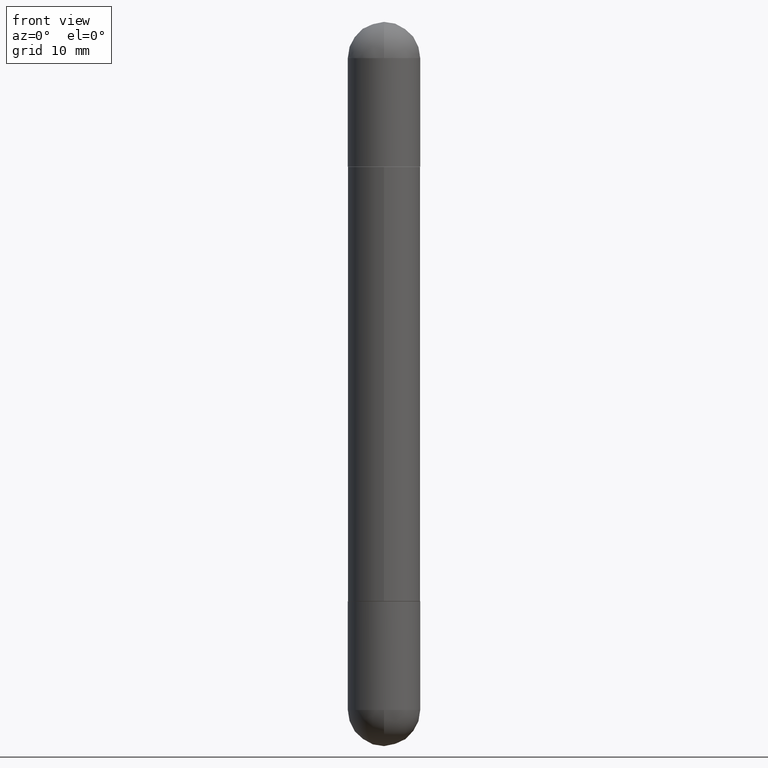
[diagram: clean part render]
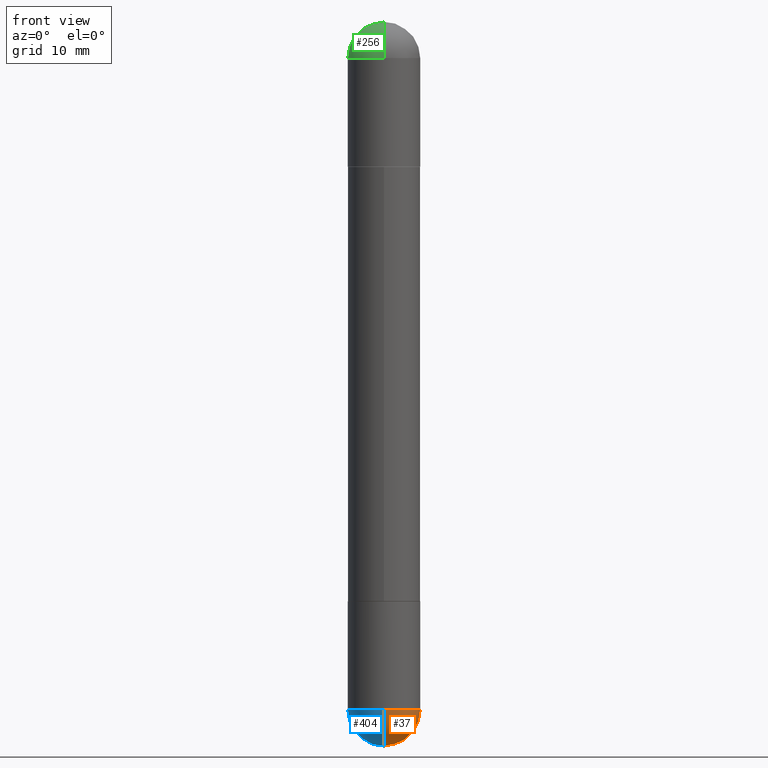
[diagram: same view with three faces highlighted in distinct colors, each labeled with its STEP entity id]
A machine part, front view with three faces highlighted in distinct colors.
Their STEP definitions:

[orange] entity #37 — the highlighted spherical surface has radius 3.175 mm.
#11 = AXIS2_PLACEMENT_3D ( 'NONE', #44, #104, #485 ) ;
#25 = DIRECTION ( 'NONE',  ( -2.445468806185136597E-29, 3.491481338843145583E-15, 1.000000000000000000 ) ) ;
#37 = ADVANCED_FACE ( 'NONE', ( #407 ), #547, .T. ) ;
#44 = CARTESIAN_POINT ( 'NONE',  ( 5.476868636775814291E-29, -8.766450547892521992E-15, -2.375000000000000000 ) ) ;
#47 = AXIS2_PLACEMENT_3D ( 'NONE', #739, #550, #429 ) ;
#59 = AXIS2_PLACEMENT_3D ( 'NONE', #94, #348, #610 ) ;
#94 = CARTESIAN_POINT ( 'NONE',  ( 5.476868636775814291E-29, -8.766450547892521992E-15, -2.375000000000000000 ) ) ;
#104 = DIRECTION ( 'NONE',  ( 1.000000000000000000, -6.982962677686265922E-15, 4.883557194083112340E-29 ) ) ;
#105 = AXIS2_PLACEMENT_3D ( 'NONE', #474, #726, #789 ) ;
#128 = ORIENTED_EDGE ( 'NONE', *, *, #761, .F. ) ;
#143 = CARTESIAN_POINT ( 'NONE',  ( 5.807988414689700538E-29, -8.292268179752471696E-15, -2.375000000000000000 ) ) ;
#184 = EDGE_CURVE ( 'NONE', #233, #754, #371, .T. ) ;
#204 = VERTEX_POINT ( 'NONE', #731 ) ;
#221 = CARTESIAN_POINT ( 'NONE',  ( 0.1250000000000000000, -8.510485763430165164E-15, -2.375000000000000000 ) ) ;
#233 = VERTEX_POINT ( 'NONE', #743 ) ;
#332 = DIRECTION ( 'NONE',  ( 1.000000000000000000, -6.982962677686270655E-15, 0.000000000000000000 ) ) ;
#348 = DIRECTION ( 'NONE',  ( -1.000000000000000000, 7.105427357601001070E-15, -4.926315508542082329E-29 ) ) ;
#371 = CIRCLE ( 'NONE', #11, 0.1250000000000001943 ) ;
#382 = ORIENTED_EDGE ( 'NONE', *, *, #184, .T. ) ;
#407 = FACE_OUTER_BOUND ( 'NONE', #506, .T. ) ;
#425 = CARTESIAN_POINT ( 'NONE',  ( 8.728703347108403340E-16, 0.1249999999999915623, -2.375000000000000888 ) ) ;
#429 = DIRECTION ( 'NONE',  ( 1.000000000000000000, -6.982962677686270655E-15, 0.000000000000000000 ) ) ;
#450 = CIRCLE ( 'NONE', #59, 0.1250000000000001943 ) ;
#474 = CARTESIAN_POINT ( 'NONE',  ( 5.476868636775814291E-29, -8.766450547892521992E-15, -2.375000000000000000 ) ) ;
#485 = DIRECTION ( 'NONE',  ( 6.982962677686265133E-15, 1.000000000000000000, 0.000000000000000000 ) ) ;
#499 = CIRCLE ( 'NONE', #47, 0.1250000000000000000 ) ;
#506 = EDGE_LOOP ( 'NONE', ( #808, #382, #721, #128 ) ) ;
#547 = SPHERICAL_SURFACE ( 'NONE', #105, 0.1250000000000001943 ) ;
#550 = DIRECTION ( 'NONE',  ( -2.445468806185136597E-29, 3.491481338843145583E-15, 1.000000000000000000 ) ) ;
#609 = CIRCLE ( 'NONE', #703, 0.1250000000000000000 ) ;
#610 = DIRECTION ( 'NONE',  ( -7.105427357601000281E-15, -1.000000000000000000, 0.000000000000000000 ) ) ;
#630 = EDGE_CURVE ( 'NONE', #712, #754, #609, .T. ) ;
#703 = AXIS2_PLACEMENT_3D ( 'NONE', #143, #25, #332 ) ;
#712 = VERTEX_POINT ( 'NONE', #221 ) ;
#721 = ORIENTED_EDGE ( 'NONE', *, *, #630, .F. ) ;
#726 = DIRECTION ( 'NONE',  ( -1.000000000000000000, 6.982962677686265922E-15, -4.883557194083112901E-29 ) ) ;
#731 = CARTESIAN_POINT ( 'NONE',  ( -8.881784197000694204E-16, -0.1250000000000086320, -2.374999999999999556 ) ) ;
#739 = CARTESIAN_POINT ( 'NONE',  ( 5.807988414689700538E-29, -8.292268179752471696E-15, -2.375000000000000000 ) ) ;
#743 = CARTESIAN_POINT ( 'NONE',  ( 5.787897026856327965E-29, -9.195231672753244292E-15, -2.500000000000000444 ) ) ;
#754 = VERTEX_POINT ( 'NONE', #425 ) ;
#761 = EDGE_CURVE ( 'NONE', #204, #712, #499, .T. ) ;
#789 = DIRECTION ( 'NONE',  ( 6.982962677686265922E-15, 1.000000000000000000, -4.370956789862814839E-15 ) ) ;
#808 = ORIENTED_EDGE ( 'NONE', *, *, #813, .F. ) ;
#813 = EDGE_CURVE ( 'NONE', #233, #204, #450, .T. ) ;

[blue] entity #404 — the highlighted spherical surface has radius 3.175 mm.
#11 = AXIS2_PLACEMENT_3D ( 'NONE', #44, #104, #485 ) ;
#44 = CARTESIAN_POINT ( 'NONE',  ( 5.476868636775814291E-29, -8.766450547892521992E-15, -2.375000000000000000 ) ) ;
#50 = CARTESIAN_POINT ( 'NONE',  ( -0.1250000000000000000, -6.749437009019256592E-15, -2.375000000000000000 ) ) ;
#59 = AXIS2_PLACEMENT_3D ( 'NONE', #94, #348, #610 ) ;
#66 = CIRCLE ( 'NONE', #428, 0.1250000000000000000 ) ;
#94 = CARTESIAN_POINT ( 'NONE',  ( 5.476868636775814291E-29, -8.766450547892521992E-15, -2.375000000000000000 ) ) ;
#104 = DIRECTION ( 'NONE',  ( 1.000000000000000000, -6.982962677686265922E-15, 4.883557194083112340E-29 ) ) ;
#144 = CARTESIAN_POINT ( 'NONE',  ( 5.476868636775814291E-29, -8.766450547892521992E-15, -2.375000000000000000 ) ) ;
#184 = EDGE_CURVE ( 'NONE', #233, #754, #371, .T. ) ;
#204 = VERTEX_POINT ( 'NONE', #731 ) ;
#210 = DIRECTION ( 'NONE',  ( 1.000000000000000000, -6.982962677686270655E-15, 0.000000000000000000 ) ) ;
#233 = VERTEX_POINT ( 'NONE', #743 ) ;
#335 = DIRECTION ( 'NONE',  ( -2.445468806185136597E-29, 3.491481338843145583E-15, 1.000000000000000000 ) ) ;
#348 = DIRECTION ( 'NONE',  ( -1.000000000000000000, 7.105427357601001070E-15, -4.926315508542082329E-29 ) ) ;
#371 = CIRCLE ( 'NONE', #11, 0.1250000000000001943 ) ;
#391 = DIRECTION ( 'NONE',  ( 6.982962677686265922E-15, 1.000000000000000000, -4.370956789862814839E-15 ) ) ;
#404 = ADVANCED_FACE ( 'NONE', ( #594 ), #707, .T. ) ;
#405 = CARTESIAN_POINT ( 'NONE',  ( 5.807988414689700538E-29, -8.292268179752471696E-15, -2.375000000000000000 ) ) ;
#425 = CARTESIAN_POINT ( 'NONE',  ( 8.728703347108403340E-16, 0.1249999999999915623, -2.375000000000000888 ) ) ;
#428 = AXIS2_PLACEMENT_3D ( 'NONE', #467, #719, #452 ) ;
#450 = CIRCLE ( 'NONE', #59, 0.1250000000000001943 ) ;
#452 = DIRECTION ( 'NONE',  ( 1.000000000000000000, -6.982962677686270655E-15, 0.000000000000000000 ) ) ;
#467 = CARTESIAN_POINT ( 'NONE',  ( 5.807988414689700538E-29, -8.292268179752471696E-15, -2.375000000000000000 ) ) ;
#469 = ORIENTED_EDGE ( 'NONE', *, *, #578, .F. ) ;
#485 = DIRECTION ( 'NONE',  ( 6.982962677686265133E-15, 1.000000000000000000, 0.000000000000000000 ) ) ;
#526 = ORIENTED_EDGE ( 'NONE', *, *, #541, .F. ) ;
#534 = DIRECTION ( 'NONE',  ( -1.000000000000000000, 6.982962677686265922E-15, -4.883557194083112901E-29 ) ) ;
#541 = EDGE_CURVE ( 'NONE', #754, #697, #763, .T. ) ;
#556 = ORIENTED_EDGE ( 'NONE', *, *, #184, .F. ) ;
#578 = EDGE_CURVE ( 'NONE', #697, #204, #66, .T. ) ;
#594 = FACE_OUTER_BOUND ( 'NONE', #717, .T. ) ;
#610 = DIRECTION ( 'NONE',  ( -7.105427357601000281E-15, -1.000000000000000000, 0.000000000000000000 ) ) ;
#643 = AXIS2_PLACEMENT_3D ( 'NONE', #144, #534, #391 ) ;
#697 = VERTEX_POINT ( 'NONE', #50 ) ;
#701 = AXIS2_PLACEMENT_3D ( 'NONE', #405, #335, #210 ) ;
#707 = SPHERICAL_SURFACE ( 'NONE', #643, 0.1250000000000001943 ) ;
#717 = EDGE_LOOP ( 'NONE', ( #556, #750, #469, #526 ) ) ;
#719 = DIRECTION ( 'NONE',  ( -2.445468806185136597E-29, 3.491481338843145583E-15, 1.000000000000000000 ) ) ;
#731 = CARTESIAN_POINT ( 'NONE',  ( -8.881784197000694204E-16, -0.1250000000000086320, -2.374999999999999556 ) ) ;
#743 = CARTESIAN_POINT ( 'NONE',  ( 5.787897026856327965E-29, -9.195231672753244292E-15, -2.500000000000000444 ) ) ;
#750 = ORIENTED_EDGE ( 'NONE', *, *, #813, .T. ) ;
#754 = VERTEX_POINT ( 'NONE', #425 ) ;
#763 = CIRCLE ( 'NONE', #701, 0.1250000000000000000 ) ;
#813 = EDGE_CURVE ( 'NONE', #233, #204, #450, .T. ) ;

[green] entity #256 — the highlighted spherical surface has radius 3.175 mm.
#22 = CARTESIAN_POINT ( 'NONE',  ( 5.476868636775814291E-29, -8.766450547892521992E-15, -0.1250000000000004441 ) ) ;
#32 = CARTESIAN_POINT ( 'NONE',  ( 5.787897026856327965E-29, -9.195231672753244292E-15, -2.561107494060246644E-16 ) ) ;
#45 = DIRECTION ( 'NONE',  ( -1.000000000000000000, 6.982962677686265922E-15, 4.883557194083112340E-29 ) ) ;
#48 = DIRECTION ( 'NONE',  ( 1.000000000000000000, -6.860497997771530774E-15, -4.840798879624142912E-29 ) ) ;
#78 = CIRCLE ( 'NONE', #493, 0.1250000000000000000 ) ;
#98 = DIRECTION ( 'NONE',  ( 1.000000000000000000, -6.982962677686265922E-15, -4.883557194083112901E-29 ) ) ;
#165 = DIRECTION ( 'NONE',  ( -6.982962677686265133E-15, -1.000000000000000000, 0.000000000000000000 ) ) ;
#168 = CARTESIAN_POINT ( 'NONE',  ( 5.807988414689700538E-29, -8.292268179752471696E-15, -0.1250000000000004441 ) ) ;
#171 = CIRCLE ( 'NONE', #590, 0.1250000000000000000 ) ;
#181 = EDGE_CURVE ( 'NONE', #814, #700, #185, .T. ) ;
#185 = CIRCLE ( 'NONE', #790, 0.1250000000000001943 ) ;
#192 = EDGE_CURVE ( 'NONE', #559, #700, #78, .T. ) ;
#215 = CARTESIAN_POINT ( 'NONE',  ( -0.1250000000000000000, -6.780053178997941168E-15, -0.1250000000000004441 ) ) ;
#226 = EDGE_CURVE ( 'NONE', #645, #559, #171, .T. ) ;
#239 = CARTESIAN_POINT ( 'NONE',  ( 5.807988414689700538E-29, -8.292268179752471696E-15, -0.1250000000000004441 ) ) ;
#256 = ADVANCED_FACE ( 'NONE', ( #543 ), #475, .T. ) ;
#258 = EDGE_LOOP ( 'NONE', ( #448, #394, #598, #513 ) ) ;
#352 = DIRECTION ( 'NONE',  ( 6.982962677686265922E-15, 1.000000000000000000, 3.551402391763536859E-15 ) ) ;
#356 = DIRECTION ( 'NONE',  ( 1.000000000000000000, -6.982962677686270655E-15, 0.000000000000000000 ) ) ;
#364 = DIRECTION ( 'NONE',  ( 1.000000000000000000, -6.982962677686270655E-15, 0.000000000000000000 ) ) ;
#368 = DIRECTION ( 'NONE',  ( 2.445468806185136597E-29, -3.491481338843145583E-15, 1.000000000000000000 ) ) ;
#394 = ORIENTED_EDGE ( 'NONE', *, *, #650, .T. ) ;
#403 = AXIS2_PLACEMENT_3D ( 'NONE', #412, #98, #352 ) ;
#412 = CARTESIAN_POINT ( 'NONE',  ( 5.476868636775814291E-29, -8.766450547892521992E-15, -0.1250000000000004441 ) ) ;
#448 = ORIENTED_EDGE ( 'NONE', *, *, #181, .F. ) ;
#475 = SPHERICAL_SURFACE ( 'NONE', #403, 0.1250000000000001943 ) ;
#490 = CARTESIAN_POINT ( 'NONE',  ( 5.476868636775814291E-29, -8.766450547892521992E-15, -0.1250000000000004441 ) ) ;
#493 = AXIS2_PLACEMENT_3D ( 'NONE', #168, #368, #364 ) ;
#512 = AXIS2_PLACEMENT_3D ( 'NONE', #22, #45, #165 ) ;
#513 = ORIENTED_EDGE ( 'NONE', *, *, #192, .T. ) ;
#543 = FACE_OUTER_BOUND ( 'NONE', #258, .T. ) ;
#554 = CARTESIAN_POINT ( 'NONE',  ( -8.575622497213856334E-16, -0.1250000000000086320, -0.1250000000000008882 ) ) ;
#559 = VERTEX_POINT ( 'NONE', #215 ) ;
#590 = AXIS2_PLACEMENT_3D ( 'NONE', #239, #727, #356 ) ;
#598 = ORIENTED_EDGE ( 'NONE', *, *, #226, .T. ) ;
#645 = VERTEX_POINT ( 'NONE', #652 ) ;
#650 = EDGE_CURVE ( 'NONE', #814, #645, #810, .T. ) ;
#652 = CARTESIAN_POINT ( 'NONE',  ( 8.728703347108403340E-16, 0.1249999999999915623, -0.1250000000000000000 ) ) ;
#700 = VERTEX_POINT ( 'NONE', #554 ) ;
#727 = DIRECTION ( 'NONE',  ( 2.445468806185136597E-29, -3.491481338843145583E-15, 1.000000000000000000 ) ) ;
#790 = AXIS2_PLACEMENT_3D ( 'NONE', #490, #48, #805 ) ;
#805 = DIRECTION ( 'NONE',  ( 6.860497997771529196E-15, 1.000000000000000000, 0.000000000000000000 ) ) ;
#810 = CIRCLE ( 'NONE', #512, 0.1250000000000001943 ) ;
#814 = VERTEX_POINT ( 'NONE', #32 ) ;